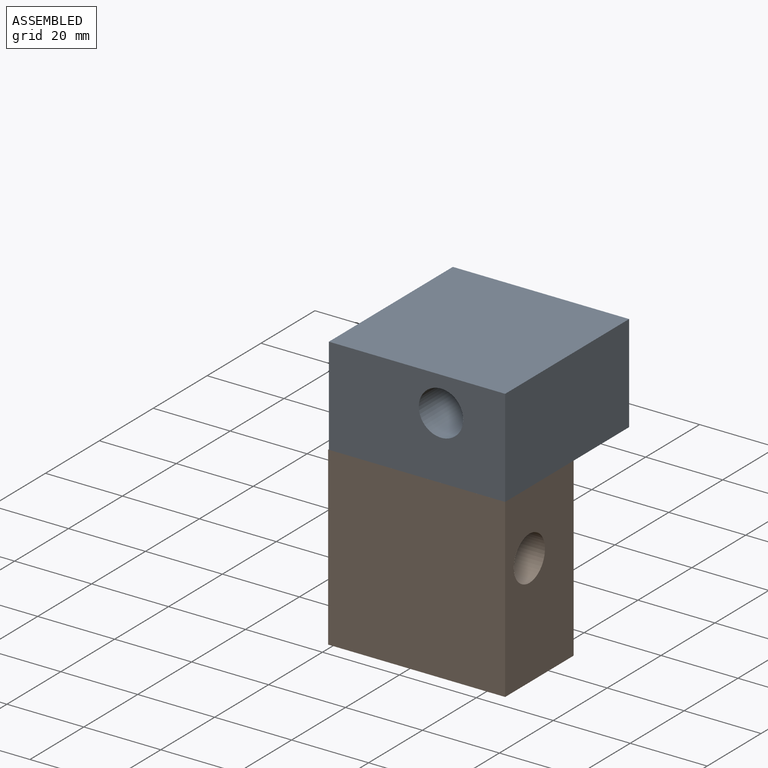
[diagram: assembled view]
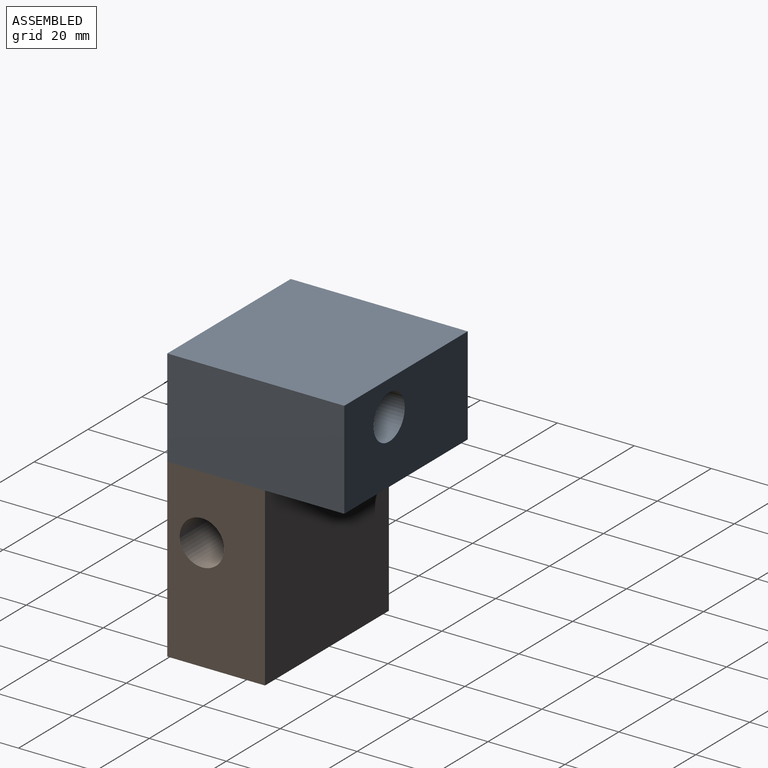
[diagram: assembled view, second angle]
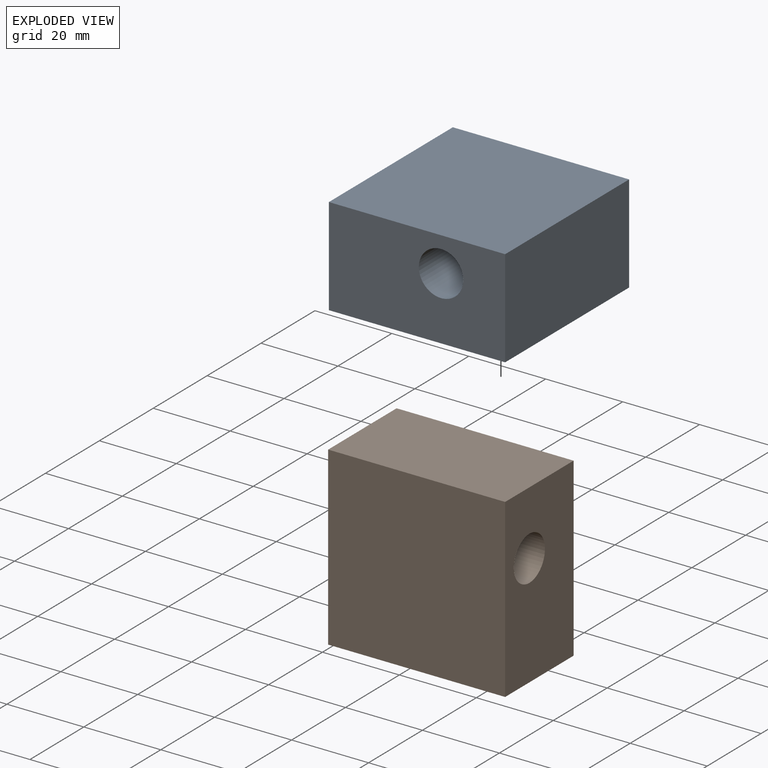
[diagram: exploded view]
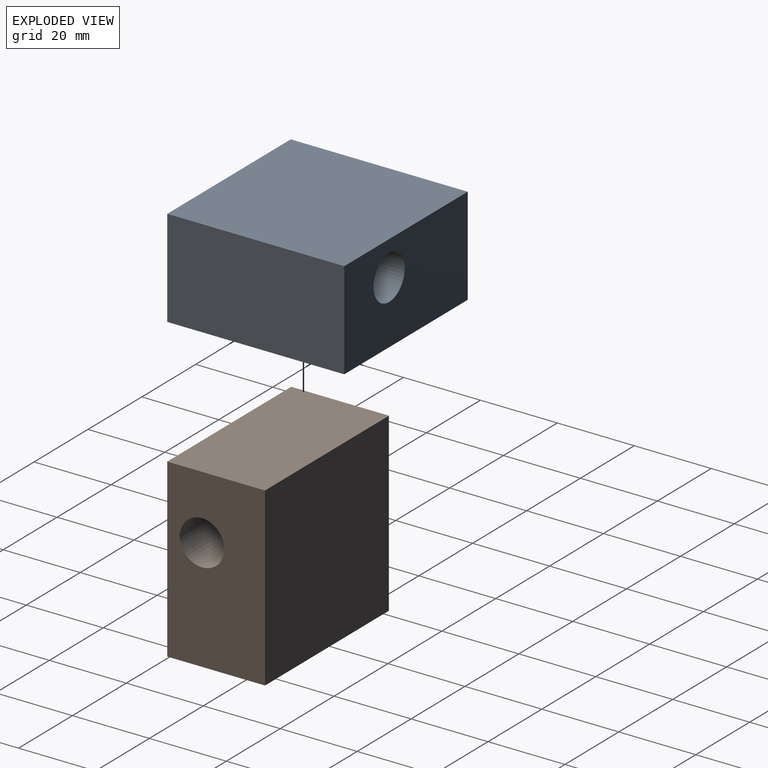
[diagram: exploded view, second angle]
ASSEMBLY  parts=2 mates=3
PART A: 7 faces, bbox 46x25.4x45.8 mm
  f0: plane 46x25.4mm, normal (0,0,1), area 1168.4mm2, adj f1,f3,f4,f5
  f1: plane 45.81x25.4mm, normal (-1,0,0), area 1059mm2, adj f0,f2,f4,f5,f6
  f2: plane 46x25.4mm, normal (0,0,-1), area 1168.4mm2, adj f1,f3,f4,f5
  f3: plane 45.81x25.4mm, normal (1,0,0), area 1059mm2, adj f0,f2,f4,f5,f6
  f4: plane 46x45.81mm, normal (0,-1,0), area 2107.5mm2, adj f0,f1,f2,f3
  f5: plane 46x45.81mm, normal (0,1,0), area 2107.5mm2, adj f0,f1,f2,f3
  f6: cylinder r=5.77mm len=46mm, axis (-1,0,0), area 1668.4mm2, adj f1,f3
PART B: same geometry as A
PLACE A rot(axis=(-0.58,0.58,-0.58),120deg) t=(-59.21,47.28,10.7)mm
PLACE B t=(-59.4,26.68,-35.11)mm
MATE planar A.f0 <-> B.f3  axis (1,0,0) through (-13.4,24.28,23.4)mm
MATE planar A.f3 <-> B.f4  axis (0,-1,0) through (-36.92,1.28,23.04)mm
MATE planar A.f5 <-> B.f0  axis (0,0,-1) through (-13.4,24.28,10.7)mm
